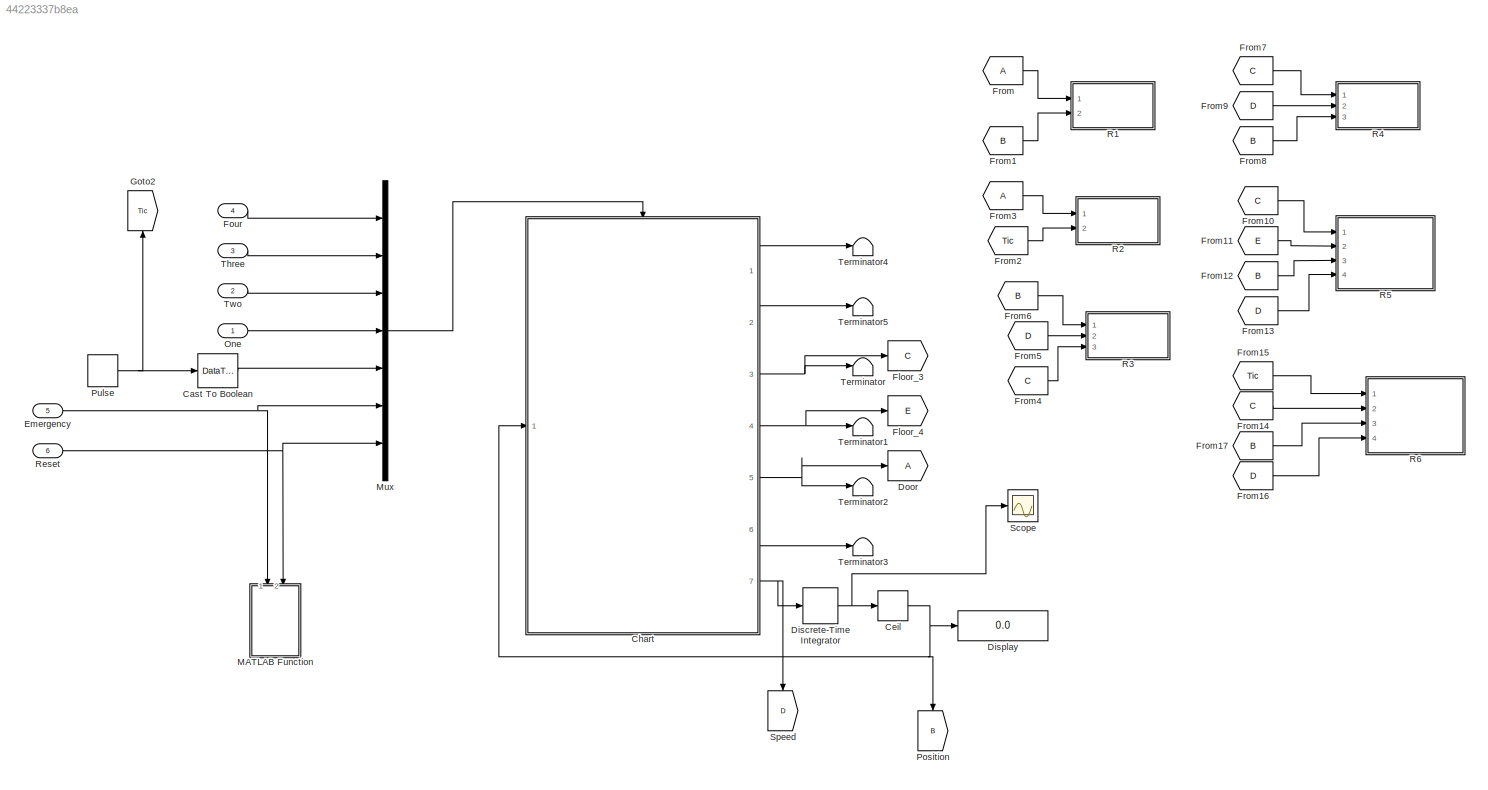
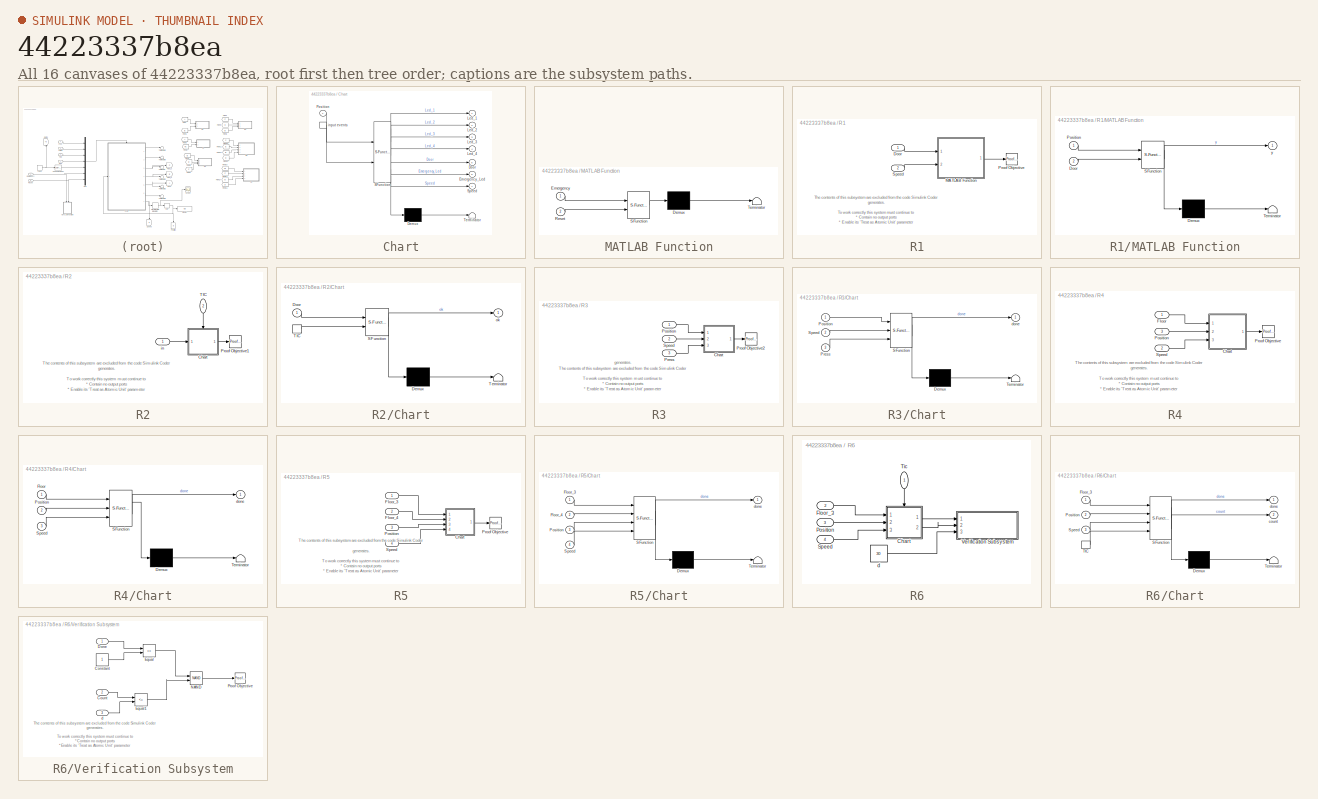
[diagram: thumbnail index - all 16 canvases of the model, root first then tree order]
MODEL slx_44223337b8ea
KIND model
CONFIG AbsTol = auto
CONFIG EnableMultiTasking = off
CONFIG FixedStep = auto
CONFIG MaxStep = auto
CONFIG MinStep = auto
CONFIG RelTol = 1e-3
CONFIG SampleTimeConstraint = Unconstrained
CONFIG Solver = FixedStepAuto
CONFIG SolverName = FixedStepAuto
CONFIG StartTime = 0.0
CONFIG StopTime = 10.0
BLOCK [DataTypeConversion] Cast To Boolean
  OutDataTypeStr = boolean
  RndMeth = Floor
  SaturateOnIntegerOverflow = off
BLOCK [Rounding] Ceil
  Operator = ceil
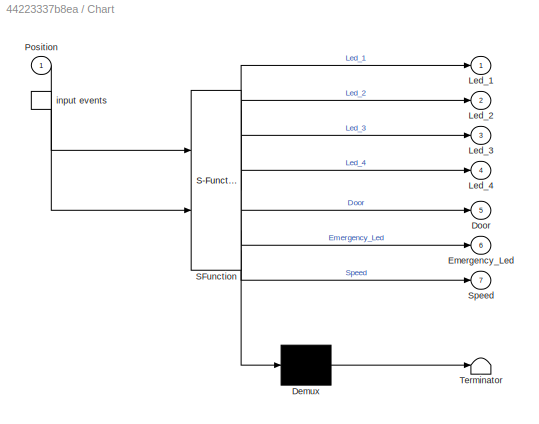
BLOCK [SubSystem] Chart
  ErrorFcn = Stateflow.Translate.translate
  PermitHierarchicalResolution = ExplicitOnly
  Ports = [1, 7, 0, 1]
  RequestExecContextInheritance = off
  SFBlockType = Chart
  TreatAsAtomicUnit = on
BLOCK [Demux] Chart/ Demux 
  Outputs = 1
  Ports = [1, 1]
BLOCK [S-Function] Chart/ SFunction 
  EnableBusSupport = on
  FunctionName = sf_sfun
  PortCounts = [2 8]
  Ports = [2, 8]
  SFcnIsStateOwnerBlock = off
  SFunctionDeploymentMode = off
  Tag = Stateflow S-Function 3
BLOCK [Terminator] Chart/ Terminator 
BLOCK [Outport] Chart/Door
  Port = 5
BLOCK [Outport] Chart/Emergency_Led
  Port = 6
BLOCK [Outport] Chart/Led_1
BLOCK [Outport] Chart/Led_2
  Port = 2
BLOCK [Outport] Chart/Led_3
  Port = 3
BLOCK [Outport] Chart/Led_4
  Port = 4
BLOCK [Inport] Chart/Position
BLOCK [Outport] Chart/Speed
  Port = 7
BLOCK [TriggerPort] Chart/input events
  Ports = [0, 1]
  ShowOutputPort = on
  StatesWhenEnabling = held
  VariantControl = (inherit)
BLOCK [DiscreteIntegrator] Discrete-Time Integrator
  ICPrevOutput = DiscIntNeverNeededParam
  ICPrevScaledInput = DiscIntNeverNeededParam
  InitialCondition = 0.01
  InitialConditionSetting = Auto
  Ports = [1, 1]
  SampleTime = -1
BLOCK [Display] Display
  Decimation = 1
  Ports = [1]
BLOCK [Goto] Door
BLOCK [Inport] Emergency
  NameLocation = left
  OutDataTypeStr = boolean
  Port = 5
BLOCK [Goto] Floor_3
  GotoTag = C
BLOCK [Goto] Floor_4
  GotoTag = E
BLOCK [Inport] Four
  NameLocation = left
  OutDataTypeStr = boolean
  Port = 4
BLOCK [From] From
BLOCK [From] From1
  GotoTag = B
BLOCK [From] From10
  GotoTag = C
BLOCK [From] From11
  GotoTag = E
BLOCK [From] From12
  GotoTag = B
BLOCK [From] From13
  GotoTag = D
BLOCK [From] From14
  GotoTag = C
BLOCK [From] From15
  GotoTag = Tic
BLOCK [From] From16
  GotoTag = D
BLOCK [From] From17
  GotoTag = B
BLOCK [From] From2
  GotoTag = Tic
BLOCK [From] From3
BLOCK [From] From4
  GotoTag = C
BLOCK [From] From5
  GotoTag = D
BLOCK [From] From6
  GotoTag = B
BLOCK [From] From7
  GotoTag = C
BLOCK [From] From8
  GotoTag = B
BLOCK [From] From9
  GotoTag = D
BLOCK [Goto] Goto2
  GotoTag = Tic
  NameLocation = right
BLOCK [SubSystem] MATLAB Function
  ErrorFcn = Stateflow.Translate.translate
  NameLocation = left
  PermitHierarchicalResolution = ExplicitOnly
  Ports = [2]
  RequestExecContextInheritance = off
  SFBlockType = MATLAB Function
  TreatAsAtomicUnit = on
BLOCK [Demux] MATLAB Function/ Demux 
  Outputs = 1
  Ports = [1, 1]
BLOCK [S-Function] MATLAB Function/ SFunction 
  EnableBusSupport = on
  FunctionName = sf_sfun
  PortCounts = [2 1]
  Ports = [2, 1]
  SFcnIsStateOwnerBlock = off
  SFunctionDeploymentMode = off
  Tag = Stateflow S-Function 6
BLOCK [Terminator] MATLAB Function/ Terminator 
BLOCK [Inport] MATLAB Function/Emergency
BLOCK [Inport] MATLAB Function/Reset
  Port = 2
BLOCK [Mux] Mux
  DisplayOption = bar
  Inputs = 7
  Ports = [7, 1]
BLOCK [Inport] One
  NameLocation = left
  OutDataTypeStr = boolean
BLOCK [Goto] Position
  GotoTag = B
BLOCK [DiscretePulseGenerator] Pulse
  NameLocation = left
  Period = 1
  Ports = [0, 1]
  PulseType = Time based
  PulseWidth = 5
BLOCK [SubSystem] R1
  CopyFcn = sldvsubsys('copy');
  DisableCoverage = on
  LoadFcn = sldvsubsys('check')
  OpenFcn = open_system(gcb,'force');
  Ports = [2]
  PreSaveFcn = set_param(gcb,'SimViewingDevice','on');\nsldvsubsys('check');
  RequestExecContextInheritance = off
  SimViewingDevice = on
  Tag = VerificationSubsystem
  TreatAsAtomicUnit = on
BLOCK [Inport] R1/Door
BLOCK [SubSystem] R1/MATLAB Function
  ErrorFcn = Stateflow.Translate.translate
  PermitHierarchicalResolution = ExplicitOnly
  Ports = [2, 1]
  RequestExecContextInheritance = off
  SFBlockType = MATLAB Function
  TreatAsAtomicUnit = on
BLOCK [Demux] R1/MATLAB Function/ Demux 
  Outputs = 1
  Ports = [1, 1]
BLOCK [S-Function] R1/MATLAB Function/ SFunction 
  EnableBusSupport = on
  FunctionName = sf_sfun
  PortCounts = [2 2]
  Ports = [2, 2]
  SFcnIsStateOwnerBlock = off
  SFunctionDeploymentMode = off
  Tag = Stateflow S-Function 4
BLOCK [Terminator] R1/MATLAB Function/ Terminator 
BLOCK [Inport] R1/MATLAB Function/Door
  Port = 2
BLOCK [Inport] R1/MATLAB Function/Position
BLOCK [Outport] R1/MATLAB Function/y
BLOCK [Reference] R1/Proof Objective  REF=sldvlib/Objectives and Constraints/Proof Objective
  AttributesFormatString = %<intervals>
  NameLocation = top
  Ports = [1]
  SourceBlock = sldvlib/Objectives and Constraints/Proof Objective
  SourceProductBaseCode = SL
  SourceType = Design Verifier Proof Objective
BLOCK [Inport] R1/Speed
  Port = 2
BLOCK [SubSystem] R2
  CopyFcn = sldvsubsys('copy');
  DisableCoverage = on
  LoadFcn = sldvsubsys('check')
  OpenFcn = open_system(gcb,'force');
  Ports = [2]
  PreSaveFcn = set_param(gcb,'SimViewingDevice','on');\nsldvsubsys('check');
  RequestExecContextInheritance = off
  SimViewingDevice = on
  Tag = VerificationSubsystem
  TreatAsAtomicUnit = on
BLOCK [SubSystem] R2/Chart
  ErrorFcn = Stateflow.Translate.translate
  PermitHierarchicalResolution = ExplicitOnly
  Ports = [1, 1, 0, 1]
  RequestExecContextInheritance = off
  SFBlockType = Chart
  TreatAsAtomicUnit = on
BLOCK [Demux] R2/Chart/ Demux 
  Outputs = 1
  Ports = [1, 1]
BLOCK [S-Function] R2/Chart/ SFunction 
  EnableBusSupport = on
  FunctionName = sf_sfun
  PortCounts = [2 2]
  Ports = [2, 2]
  SFcnIsStateOwnerBlock = off
  SFunctionDeploymentMode = off
  Tag = Stateflow S-Function 2
BLOCK [Terminator] R2/Chart/ Terminator 
BLOCK [Inport] R2/Chart/Door
BLOCK [TriggerPort] R2/Chart/TIC
  Ports = [0, 1]
  ShowOutputPort = on
  StatesWhenEnabling = held
  VariantControl = (inherit)
BLOCK [Outport] R2/Chart/ok
BLOCK [Reference] R2/Proof Objective1  REF=sldvlib/Objectives and Constraints/Proof Objective
  AttributesFormatString = %<intervals>
  NameLocation = top
  Ports = [1]
  SourceBlock = sldvlib/Objectives and Constraints/Proof Objective
  SourceProductBaseCode = SL
  SourceType = Design Verifier Proof Objective
BLOCK [Inport] R2/TIC
  NameLocation = left
  Port = 2
BLOCK [Inport] R2/in
BLOCK [SubSystem] R3
  CopyFcn = sldvsubsys('copy');
  DisableCoverage = on
  LoadFcn = sldvsubsys('check')
  OpenFcn = open_system(gcb,'force');
  Ports = [3]
  PreSaveFcn = set_param(gcb,'SimViewingDevice','on');\nsldvsubsys('check');
  RequestExecContextInheritance = off
  SimViewingDevice = on
  Tag = VerificationSubsystem
  TreatAsAtomicUnit = on
BLOCK [SubSystem] R3/Chart
  ErrorFcn = Stateflow.Translate.translate
  PermitHierarchicalResolution = ExplicitOnly
  Ports = [3, 1]
  RequestExecContextInheritance = off
  SFBlockType = Chart
  TreatAsAtomicUnit = on
BLOCK [Demux] R3/Chart/ Demux 
  Outputs = 1
  Ports = [1, 1]
BLOCK [S-Function] R3/Chart/ SFunction 
  EnableBusSupport = on
  FunctionName = sf_sfun
  PortCounts = [3 2]
  Ports = [3, 2]
  SFcnIsStateOwnerBlock = off
  SFunctionDeploymentMode = off
  Tag = Stateflow S-Function 5
BLOCK [Terminator] R3/Chart/ Terminator 
BLOCK [Inport] R3/Chart/Position
BLOCK [Inport] R3/Chart/Press
  Port = 3
BLOCK [Inport] R3/Chart/Speed
  Port = 2
BLOCK [Outport] R3/Chart/done
BLOCK [Inport] R3/Position
BLOCK [Inport] R3/Press
  Port = 3
BLOCK [Reference] R3/Proof Objective2  REF=sldvlib/Objectives and Constraints/Proof Objective
  AttributesFormatString = %<intervals>
  NameLocation = top
  Ports = [1]
  SourceBlock = sldvlib/Objectives and Constraints/Proof Objective
  SourceProductBaseCode = SL
  SourceType = Design Verifier Proof Objective
BLOCK [Inport] R3/Speed
  Port = 2
BLOCK [SubSystem] R4
  CopyFcn = sldvsubsys('copy');
  DisableCoverage = on
  LoadFcn = sldvsubsys('check')
  OpenFcn = open_system(gcb,'force');
  Ports = [3]
  PreSaveFcn = set_param(gcb,'SimViewingDevice','on');\nsldvsubsys('check');
  RequestExecContextInheritance = off
  SimViewingDevice = on
  Tag = VerificationSubsystem
  TreatAsAtomicUnit = on
BLOCK [SubSystem] R4/Chart
  ErrorFcn = Stateflow.Translate.translate
  PermitHierarchicalResolution = ExplicitOnly
  Ports = [3, 1]
  RequestExecContextInheritance = off
  SFBlockType = Chart
  TreatAsAtomicUnit = on
BLOCK [Demux] R4/Chart/ Demux 
  Outputs = 1
  Ports = [1, 1]
BLOCK [S-Function] R4/Chart/ SFunction 
  EnableBusSupport = on
  FunctionName = sf_sfun
  PortCounts = [3 2]
  Ports = [3, 2]
  SFcnIsStateOwnerBlock = off
  SFunctionDeploymentMode = off
  Tag = Stateflow S-Function 1
BLOCK [Terminator] R4/Chart/ Terminator 
BLOCK [Inport] R4/Chart/Floor
BLOCK [Inport] R4/Chart/Position
  Port = 2
BLOCK [Inport] R4/Chart/Speed
  Port = 3
BLOCK [Outport] R4/Chart/done
BLOCK [Inport] R4/Floor
BLOCK [Inport] R4/Position
  Port = 3
BLOCK [Reference] R4/Proof Objective  REF=sldvlib/Objectives and Constraints/Proof Objective
  AttributesFormatString = %<intervals>
  NameLocation = top
  Ports = [1]
  SourceBlock = sldvlib/Objectives and Constraints/Proof Objective
  SourceProductBaseCode = SL
  SourceType = Design Verifier Proof Objective
BLOCK [Inport] R4/Speed
  Port = 2
BLOCK [SubSystem] R5
  CopyFcn = sldvsubsys('copy');
  DisableCoverage = on
  LoadFcn = sldvsubsys('check')
  OpenFcn = open_system(gcb,'force');
  Ports = [4]
  PreSaveFcn = set_param(gcb,'SimViewingDevice','on');\nsldvsubsys('check');
  RequestExecContextInheritance = off
  SimViewingDevice = on
  Tag = VerificationSubsystem
  TreatAsAtomicUnit = on
BLOCK [SubSystem] R5/Chart
  ErrorFcn = Stateflow.Translate.translate
  PermitHierarchicalResolution = ExplicitOnly
  Ports = [4, 1]
  RequestExecContextInheritance = off
  SFBlockType = Chart
  TreatAsAtomicUnit = on
BLOCK [Demux] R5/Chart/ Demux 
  Outputs = 1
  Ports = [1, 1]
BLOCK [S-Function] R5/Chart/ SFunction 
  EnableBusSupport = on
  FunctionName = sf_sfun
  PortCounts = [4 2]
  Ports = [4, 2]
  SFcnIsStateOwnerBlock = off
  SFunctionDeploymentMode = off
  Tag = Stateflow S-Function 7
BLOCK [Terminator] R5/Chart/ Terminator 
BLOCK [Inport] R5/Chart/Floor_3
BLOCK [Inport] R5/Chart/Floor_4
  Port = 2
BLOCK [Inport] R5/Chart/Position
  Port = 3
BLOCK [Inport] R5/Chart/Speed
  Port = 4
BLOCK [Outport] R5/Chart/done
BLOCK [Inport] R5/Floor_3
BLOCK [Inport] R5/Floor_4
  Port = 2
BLOCK [Inport] R5/Position
  Port = 3
BLOCK [Reference] R5/Proof Objective  REF=sldvlib/Objectives and Constraints/Proof Objective
  AttributesFormatString = %<intervals>
  NameLocation = top
  Ports = [1]
  SourceBlock = sldvlib/Objectives and Constraints/Proof Objective
  SourceProductBaseCode = SL
  SourceType = Design Verifier Proof Objective
BLOCK [Inport] R5/Speed
  Port = 4
BLOCK [SubSystem] R6
  Ports = [4]
  RequestExecContextInheritance = off
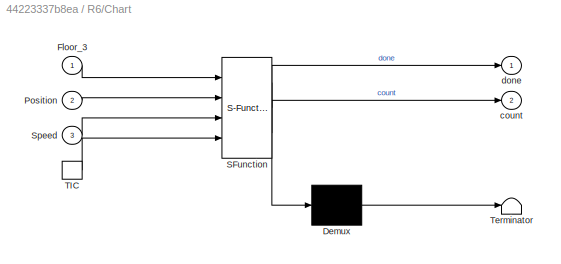
BLOCK [SubSystem] R6/Chart
  ErrorFcn = Stateflow.Translate.translate
  PermitHierarchicalResolution = ExplicitOnly
  Ports = [3, 2, 0, 1]
  RequestExecContextInheritance = off
  SFBlockType = Chart
  TreatAsAtomicUnit = on
BLOCK [Demux] R6/Chart/ Demux 
  Outputs = 1
  Ports = [1, 1]
BLOCK [S-Function] R6/Chart/ SFunction 
  EnableBusSupport = on
  FunctionName = sf_sfun
  PortCounts = [4 3]
  Ports = [4, 3]
  SFcnIsStateOwnerBlock = off
  SFunctionDeploymentMode = off
  Tag = Stateflow S-Function 9
BLOCK [Terminator] R6/Chart/ Terminator 
BLOCK [Inport] R6/Chart/Floor_3
BLOCK [Inport] R6/Chart/Position
  Port = 2
BLOCK [Inport] R6/Chart/Speed
  Port = 3
BLOCK [TriggerPort] R6/Chart/TIC
  Ports = [0, 1]
  ShowOutputPort = on
  StatesWhenEnabling = held
  VariantControl = (inherit)
BLOCK [Outport] R6/Chart/count
  Port = 2
BLOCK [Outport] R6/Chart/done
BLOCK [Inport] R6/Floor_3
  Port = 2
BLOCK [Inport] R6/Position
  Port = 3
BLOCK [Inport] R6/Speed
  Port = 4
BLOCK [Inport] R6/Tic
  NameLocation = left
BLOCK [SubSystem] R6/Verification Subsystem
  CopyFcn = sldvsubsys('copy');
  DisableCoverage = on
  LoadFcn = sldvsubsys('check')
  OpenFcn = open_system(gcb,'force');
  Ports = [3]
  PreSaveFcn = set_param(gcb,'SimViewingDevice','on');\nsldvsubsys('check');
  RequestExecContextInheritance = off
  SimViewingDevice = on
  Tag = VerificationSubsystem
  TreatAsAtomicUnit = on
BLOCK [Constant] R6/Verification Subsystem/Constant
BLOCK [Inport] R6/Verification Subsystem/Count
  Port = 2
BLOCK [Inport] R6/Verification Subsystem/Done
BLOCK [RelationalOperator] R6/Verification Subsystem/Equal
  InputSameDT = off
  Operator = ==
  OutDataTypeStr = boolean
  Ports = [2, 1]
  RndMeth = Simplest
BLOCK [RelationalOperator] R6/Verification Subsystem/Equal1
  InputSameDT = off
  Operator = <=
  OutDataTypeStr = boolean
  Ports = [2, 1]
  RndMeth = Simplest
BLOCK [Logic] R6/Verification Subsystem/NAND
  AllPortsSameDT = off
  IconShape = distinctive
  Operator = NAND
  OutDataTypeStr = boolean
  Ports = [2, 1]
BLOCK [Reference] R6/Verification Subsystem/Proof Objective  REF=sldvlib/Objectives and Constraints/Proof Objective
  AttributesFormatString = %<intervals>
  NameLocation = top
  Ports = [1]
  SourceBlock = sldvlib/Objectives and Constraints/Proof Objective
  SourceProductBaseCode = SL
  SourceType = Design Verifier Proof Objective
BLOCK [Inport] R6/Verification Subsystem/d
  Port = 3
BLOCK [Constant] R6/d
  Value = 30
BLOCK [Inport] Reset
  NameLocation = top
  OutDataTypeStr = boolean
  Port = 6
BLOCK [Scope] Scope
  Floating = off
  NumInputPorts = 1
  Ports = [1]
  ScopeSpecificationString = Simulink.scopes.TimeScopeBlockCfg('CurrentConfiguration', extmgr.ConfigurationSet(extmgr.Configuration('Core','General UI',true),extmgr.Configuration('Core','Source UI',true),extmgr.Configuration('Sources','WiredSimulink',true),extmgr.Configuration('Visuals','Time Domain',true,'SerializedDisplays',{struct('MinYLimReal','0.975','MaxYLimReal','1.225','YLabelReal','','MinYLimMag','0.975','MaxYLimMag'...<+1366ch>
BLOCK [Goto] Speed
  GotoTag = D
BLOCK [Terminator] Terminator
BLOCK [Terminator] Terminator1
BLOCK [Terminator] Terminator2
BLOCK [Terminator] Terminator3
BLOCK [Terminator] Terminator4
BLOCK [Terminator] Terminator5
BLOCK [Inport] Three
  NameLocation = left
  OutDataTypeStr = boolean
  Port = 3
BLOCK [Inport] Two
  NameLocation = left
  OutDataTypeStr = boolean
  Port = 2
ANNOTATION R1: The contents of this subsystem are excluded from the code Simulink Coder generates. To work correctly this system must continue to * Contain no output ports * Enable its 'Treat as Atomic Unit' parameter * Specify its 'Mask type' parameter as "VerificationSubsystem"
ANNOTATION R2: The contents of this subsystem are excluded from the code Simulink Coder generates. To work correctly this system must continue to * Contain no output ports * Enable its 'Treat as Atomic Unit' parameter * Specify its 'Mask type' parameter as "VerificationSubsystem"
ANNOTATION R3: The contents of this subsystem are excluded from the code Simulink Coder generates. To work correctly this system must continue to * Contain no output ports * Enable its 'Treat as Atomic Unit' parameter * Specify its 'Mask type' parameter as "VerificationSubsystem"
ANNOTATION R4: The contents of this subsystem are excluded from the code Simulink Coder generates. To work correctly this system must continue to * Contain no output ports * Enable its 'Treat as Atomic Unit' parameter * Specify its 'Mask type' parameter as "VerificationSubsystem"
ANNOTATION R5: The contents of this subsystem are excluded from the code Simulink Coder generates. To work correctly this system must continue to * Contain no output ports * Enable its 'Treat as Atomic Unit' parameter * Specify its 'Mask type' parameter as "VerificationSubsystem"
ANNOTATION R6/Verification Subsystem: The contents of this subsystem are excluded from the code Simulink Coder generates. To work correctly this system must continue to * Contain no output ports * Enable its 'Treat as Atomic Unit' parameter * Specify its 'Mask type' parameter as "VerificationSubsystem"
LINE Cast To Boolean:1 -> Mux:5
NET Ceil:1 -> Chart:1, Display:1, Position:1
LINE Chart:1 -> Terminator4:1
LINE Chart:2 -> Terminator5:1
NET Chart:3 -> Floor_3:1, Terminator:1
NET Chart:4 -> Floor_4:1, Terminator1:1
NET Chart:5 -> Door:1, Terminator2:1
LINE Chart:6 -> Terminator3:1
NET Chart:7 -> Discrete-Time Integrator:1, Speed:1
NET Discrete-Time Integrator:1 -> Ceil:1, Scope:1
NET Emergency:1 -> MATLAB Function:1, Mux:6
LINE Four:1 -> Mux:1
LINE From10:1 -> R5:1
LINE From11:1 -> R5:2
LINE From12:1 -> R5:3
LINE From13:1 -> R5:4
LINE From14:1 -> R6:2
LINE From15:1 -> R6:1
LINE From16:1 -> R6:4
LINE From17:1 -> R6:3
LINE From1:1 -> R1:2
LINE From2:1 -> R2:2
LINE From3:1 -> R2:1
LINE From4:1 -> R3:3
LINE From5:1 -> R3:2
LINE From6:1 -> R3:1
LINE From7:1 -> R4:1
LINE From8:1 -> R4:3
LINE From9:1 -> R4:2
LINE From:1 -> R1:1
LINE Mux:1 -> Chart:trigger
LINE One:1 -> Mux:4
NET Pulse:1 -> Cast To Boolean:1, Goto2:1
LINE R6/Chart:1 -> R6/Verification Subsystem:1
LINE R6/Chart:2 -> R6/Verification Subsystem:2
LINE R6/Floor_3:1 -> R6/Chart:1
LINE R6/Position:1 -> R6/Chart:2
LINE R6/Speed:1 -> R6/Chart:3
LINE R6/Tic:1 -> R6/Chart:trigger
LINE R6/d:1 -> R6/Verification Subsystem:3
NET Reset:1 -> MATLAB Function:2, Mux:7
LINE Three:1 -> Mux:2
LINE Two:1 -> Mux:3
note: NET lines group one-source signal fan-out (src -> all destinations, sorted); 1:1 wires keep LINE
CHART R4/Chart states=5 transitions=6
  STATE_LABEL 'Initial\n'
  STATE_LABEL 'is_Press\n'
  STATE_LABEL 'Bad\nen:done=1;'
  STATE_LABEL 'is_stopped'
  STATE_LABEL 'pressed'
CHART R2/Chart states=4 transitions=5
  STATE_LABEL 'Init\nen:ok=0;'
  STATE_LABEL 'is_closed'
  STATE_LABEL 'is_open'
  STATE_LABEL 'error\nen:ok=1;'
CHART Chart states=14 transitions=16
  STATE_LABEL 'Emergency_State\nen: Speed=0;Emergency_Led=1;\n'
  STATE_LABEL 'Initial\nen:init();'
  STATE_LABEL 'Controller\non One: queue(1) = 1;Led_1 = 1;\non Two: queue(2) = 1;Led_2 = 1;\non Three: queue(3) = 1;Led_3 =1;\non Four: queue(4) = 1;Led_4 = 1;\n'
  STATE_LABEL 'Idle\nen: Direction = 0;'
  STATE_LABEL 'UP\nen: Direction=1;\ndu:Speed = 0.2;'
  STATE_LABEL 'DOWN\nen: Direction=-1;\ndu: Speed =-0.2;'
  STATE_LABEL 'Check_Down\nen:Speed=0;'
  STATE_LABEL 'Check_Up\nen:Speed=0;\n'
  STATE_LABEL 'Door\nen: Door=1;\ndu: queue(Position) = 0;\n'
  STATE_LABEL '{Door=0;led();}'
  STATE_LABEL '[down==1]'
  STATE_LABEL '[up==1]'
  STATE_LABEL '[queue(Position)==1]'
  STATE_LABEL '[none == 1]'
  STATE_LABEL '[up==1&&(Direction == 1||down==0)]'
  STATE_LABEL '[down==1&&up==0]'
  STATE_LABEL '[queue(Position)==1]\n{led();}'
  STATE_LABEL '[queue(Position)==1]\n{led();}'
  STATE_LABEL 'after(5,sec){Door=0;led();}'
  STATE_LABEL 'Idle\nen: Direction = 0;'
  STATE_LABEL 'UP\nen: Direction=1;\ndu:Speed = 0.2;'
  STATE_LABEL 'DOWN\nen: Direction=-1;\ndu: Speed =-0.2;'
  STATE_LABEL 'Check_Down\nen:Speed=0;'
  STATE_LABEL 'Check_Up\nen:Speed=0;\n'
  STATE_LABEL 'Door\nen: Door=1;\ndu: queue(Position) = 0;\n'
  STATE_LABEL 'init'
  STATE_LABEL 'SCRIPT:\nfunction init()\nLed_1=0;\nLed_2=0;\nLed_3=0;\nLed_4=0;\nDoor=0;\nEmergency_Led=0;\nqueue=[0 0 0 0];\ndestination=0;\nend\n \n'
  STATE_LABEL 'y = down'
  STATE_LABEL 'SCRIPT:\nfunction y = down\ny=0;\nif queue(1) == 1 \n    destination = 1;\n    if Position < destination \n        y = 0;\n    elseif Position > destination\n        y = 1;\n    end\nelseif queue(2) == 1 \n    destination = 2;\n    if Position < destination \n        y = 0;\n    elseif Position > destination\n        y = 1;\n    end\nelseif queue(3) == 1 \n    destination = 3;\n   if Position < destination \n        ...<+218ch>'
  STATE_LABEL 'led'
  STATE_LABEL 'SCRIPT:\nfunction led\nif Position == 1 && Led_1 == 1\n    Led_1 = 0;\nelseif Position == 2 && Led_2 == 1\n    Led_2 = 0;\nelseif Position == 3 && Led_3 == 1\n    Led_3 = 0;\nelseif Position == 4 && Led_4 == 1\n    Led_4 = 0;\nelse\nend'
  STATE_LABEL 'y = up'
  STATE_LABEL 'SCRIPT:\nfunction y = up\ny=0;\nif queue(4) == 1 \n    destination = 4;\n    if Position < destination \n        y = 1;\n    elseif Position > destination\n        y = 0;\n    end\nelseif queue(3) == 1 \n    destination = 3;\n   if Position < destination\n        y = 1;\n    elseif Position > destination\n        y = 0;\n   end\nelseif queue(2) == 1 \n    destination = 2;\n    if Position < destination \n        y = ...<+214ch>'
  STATE_LABEL 'y = none'
  STATE_LABEL 'SCRIPT:\nfunction y = none\nif queue(1) == 0 && queue(2) == 0 && queue(3) == 0 && queue(4) == 0 \n    y = 1;\nelse\n    y = 0;\nend\n'
CHART R1/MATLAB Function states=1 transitions=1
  STATE_LABEL 'eML_blk_kernel()'
  STATE_LABEL 'SCRIPT:\nfunction y = fcn(Position,Door)\nif (Position ~= 1 || Position ~= 2 || Position ~= 3 || Position ~= 4)&& (Door==1)\n    y = true;\nelse\n    y = false;\nend'
CHART R3/Chart states=3 transitions=4
  STATE_LABEL 'initial\nen:done=0;'
  STATE_LABEL 'Floor'
  STATE_LABEL 'Check'
CHART MATLAB Function states=1 transitions=1
  STATE_LABEL 'eML_blk_kernel()'
  STATE_LABEL 'SCRIPT:\nfunction fcn(Emergency,Reset)\nsldv.assume(Emergency+Reset ==0);\nend\n'
CHART R5/Chart states=8 transitions=10
  STATE_LABEL 'Bad'
  STATE_LABEL 'Initial'
  STATE_LABEL 'Unsatisfied\nen:done=1;'
  STATE_LABEL 'is_pressed1'
  STATE_LABEL 'is_pressed'
  STATE_LABEL 'Reach_4\n'
  STATE_LABEL 'Again '
  STATE_LABEL 'Reach_3\n'
CHART R6/Chart states=3 transitions=3
  STATE_LABEL 'Initial\nen:count=0;'
  STATE_LABEL 'Is_pressed\non TIC: count=count+1;'
  STATE_LABEL 'Reached_3\nen:done=1;'
CHART  states=0 transitions=0
CHART  states=0 transitions=0
CHART  states=0 transitions=0
CHART  states=0 transitions=0
CHART  states=0 transitions=0
CHART  states=0 transitions=0
CHART  states=0 transitions=0
CHART  states=0 transitions=0
